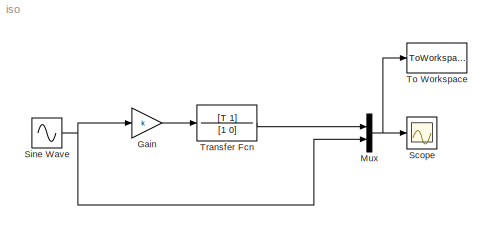
MODEL iso
KIND model
BLOCK [Gain] Gain
  Gain = k
  OutDataTypeStr = Inherit: Inherit via internal rule
  ParamDataTypeStr = Inherit: Inherit via internal rule
  SID = 11
  SaturateOnIntegerOverflow = off
BLOCK [Mux] Mux
  DisplayOption = bar
  Inputs = 2
  Ports = [2, 1]
  SID = 1
BLOCK [Scope] Scope
  Floating = off
  NumInputPorts = 1
  Ports = [1]
  SID = 2
  ShowLegends = off
BLOCK [Sin] Sine Wave
  Frequency = w
  Ports = [0, 1]
  SID = 3
  SampleTime = 0
BLOCK [ToWorkspace] To Workspace
  FixptAsFi = on
  MaxDataPoints = inf
  Ports = [1]
  SID = 9
  SampleTime = -1
  Save2DSignal = 3-D array (concatenate along third dimension)
  SaveFormat = Structure With Time
  VariableName = out
BLOCK [TransferFcn] Transfer Fcn
  Denominator = [1 0]
  Numerator = [T 1]
  SID = 10
LINE Gain:1 -> Transfer Fcn:1
NET Mux:1 -> Scope:1, To Workspace:1
NET Sine Wave:1 -> Gain:1, Mux:2
LINE Transfer Fcn:1 -> Mux:1
note: NET lines group one-source signal fan-out (src -> all destinations, sorted); 1:1 wires keep LINE
